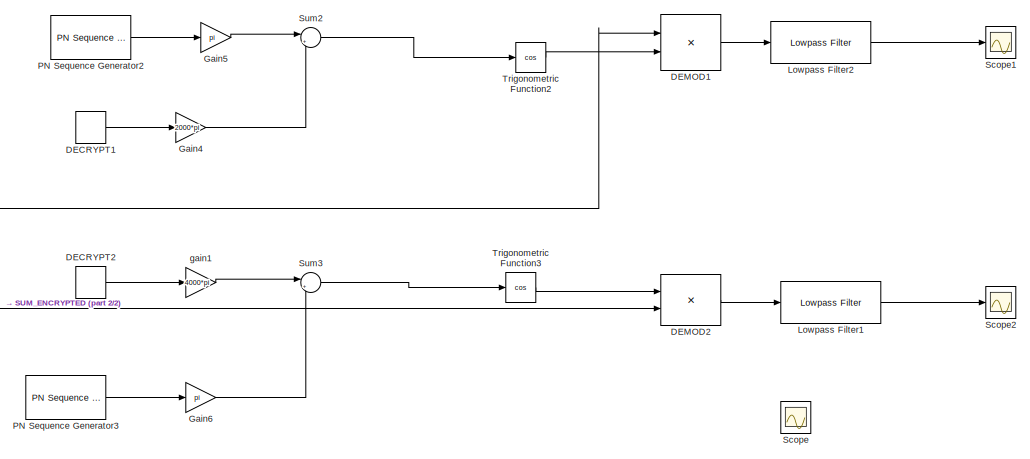
[diagram: root canvas - part 1/2, top right region]
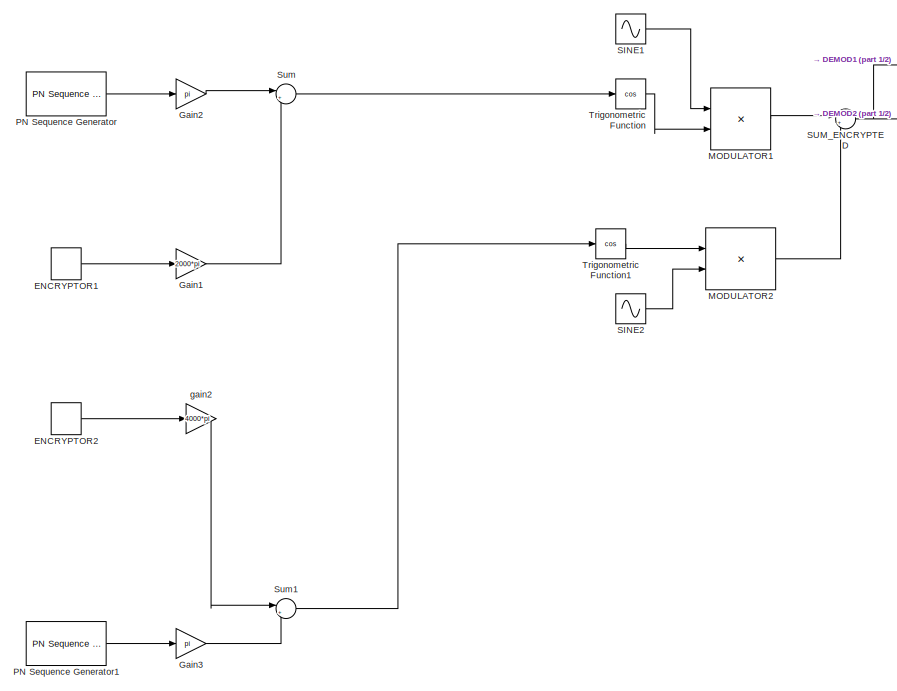
[diagram: root canvas - part 2/2, left side, full height]
MODEL slx_d03cf57683a1
KIND model
CONFIG AbsTol = auto
CONFIG EnableMultiTasking = off
CONFIG FixedStep = 0.0001
CONFIG MaxStep = auto
CONFIG MinStep = auto
CONFIG RelTol = 1e-3
CONFIG SampleTimeConstraint = Unconstrained
CONFIG SolverName = FixedStepAuto
CONFIG StartTime = 0.0
CONFIG StopTime = 10
BLOCK [DiscretePulseGenerator] DECRYPT1
  Period = 10
  PulseWidth = 5
  SampleTime = 0.0001
BLOCK [DiscretePulseGenerator] DECRYPT2
  Period = 10
  PulseWidth = 5
  SampleTime = 0.0001
BLOCK [Product] DEMOD1
BLOCK [Product] DEMOD2
BLOCK [DiscretePulseGenerator] ENCRYPTOR1
  Period = 10
  PulseWidth = 5
  SampleTime = 0.0001
BLOCK [DiscretePulseGenerator] ENCRYPTOR2
  Period = 5
  PulseWidth = 3
  SampleTime = 0.0001
BLOCK [Gain] Gain1
  Gain = 2000*pi
BLOCK [Gain] Gain2
  Gain = pi
BLOCK [Gain] Gain3
  Gain = pi
BLOCK [Gain] Gain4
  Gain = 2000*pi
BLOCK [Gain] Gain5
  Gain = pi
BLOCK [Gain] Gain6
  Gain = pi
BLOCK [Reference] Lowpass Filter1  REF=dspfdesign/Lowpass Filter
  SourceBlock = dspfdesign/Lowpass Filter
  SourceType = dsp.simulink.LowpassFilter
BLOCK [Reference] Lowpass Filter2  REF=dspfdesign/Lowpass Filter
  SourceBlock = dspfdesign/Lowpass Filter
  SourceType = dsp.simulink.LowpassFilter
BLOCK [Product] MODULATOR1
BLOCK [Product] MODULATOR2
BLOCK [Reference] PN Sequence Generator  REF=commseqgen3/PN Sequence
Generator
  SourceBlock = commseqgen3/PN Sequence\nGenerator
  SourceType = PN Sequence Generator
BLOCK [Reference] PN Sequence Generator1  REF=commseqgen3/PN Sequence
Generator
  SourceBlock = commseqgen3/PN Sequence\nGenerator
  SourceType = PN Sequence Generator
BLOCK [Reference] PN Sequence Generator2  REF=commseqgen3/PN Sequence
Generator
  SourceBlock = commseqgen3/PN Sequence\nGenerator
  SourceType = PN Sequence Generator
BLOCK [Reference] PN Sequence Generator3  REF=commseqgen3/PN Sequence
Generator
  SourceBlock = commseqgen3/PN Sequence\nGenerator
  SourceType = PN Sequence Generator
BLOCK [Sin] SINE1
  Frequency = 10
  SampleTime = 0.0001
  Samples = 1000
  SineType = Sample based
BLOCK [Sin] SINE2
  Frequency = 20
  SampleTime = 0.0001
  Samples = 500
  SineType = Sample based
BLOCK [Sum] SUM_ENCRYPTED
  Inputs = |++
BLOCK [Scope] Scope
  Floating = off
  NumInputPorts = 1
  ScopeSpecificationString = Simulink.scopes.TimeScopeBlockCfg('CurrentConfiguration', extmgr.ConfigurationSet(extmgr.Configuration('Core','General UI',true),extmgr.Configuration('Core','Source UI',true),extmgr.Configuration('Sources','WiredSimulink',true,'DataLoggingVariableName','ScopeData1'),extmgr.Configuration('Visuals','Time Domain',true,'SerializedDisplays',{struct('MinYLimReal','-23666487.9792','MaxYLimReal','23708767...<+1621ch>
BLOCK [Scope] Scope1
  Floating = off
  NumInputPorts = 1
  ScopeSpecificationString = Simulink.scopes.TimeScopeBlockCfg('CurrentConfiguration', extmgr.ConfigurationSet(extmgr.Configuration('Core','General UI',true),extmgr.Configuration('Core','Source UI',true),extmgr.Configuration('Sources','WiredSimulink',true,'DataLoggingVariableName','ScopeData2'),extmgr.Configuration('Visuals','Time Domain',true,'SerializedDisplays',{struct('MinYLimReal','-16490241630.18025','MaxYLimReal','1643...<+1612ch>
BLOCK [Scope] Scope2
  Floating = off
  NumInputPorts = 1
  ScopeSpecificationString = Simulink.scopes.TimeScopeBlockCfg('CurrentConfiguration', extmgr.ConfigurationSet(extmgr.Configuration('Core','General UI',true),extmgr.Configuration('Core','Source UI',true),extmgr.Configuration('Sources','WiredSimulink',true,'DataLoggingVariableName','ScopeData3'),extmgr.Configuration('Visuals','Time Domain',true,'SerializedDisplays',{struct('MinYLimReal','-0.69437','MaxYLimReal','1.99494','YLab...<+1509ch>
BLOCK [Sum] Sum
  Inputs = |++
BLOCK [Sum] Sum1
  Inputs = |++
BLOCK [Sum] Sum2
  Inputs = |++
BLOCK [Sum] Sum3
  Inputs = |++
BLOCK [Trigonometry] Trigonometric Function
  Operator = cos
BLOCK [Trigonometry] Trigonometric Function1
  Operator = cos
BLOCK [Trigonometry] Trigonometric Function2
  Operator = cos
BLOCK [Trigonometry] Trigonometric Function3
  Operator = cos
BLOCK [Gain] gain1
  Gain = 4000*pi
BLOCK [Gain] gain2
  Gain = 4000*pi
LINE DECRYPT1:1 -> Gain4:1
LINE DECRYPT2:1 -> gain1:1
LINE DEMOD1:1 -> Lowpass Filter2:1
LINE DEMOD2:1 -> Lowpass Filter1:1
LINE ENCRYPTOR1:1 -> Gain1:1
LINE ENCRYPTOR2:1 -> gain2:1
LINE Gain1:1 -> Sum:2
LINE Gain2:1 -> Sum:1
LINE Gain3:1 -> Sum1:2
LINE Gain4:1 -> Sum2:2
LINE Gain5:1 -> Sum2:1
LINE Gain6:1 -> Sum3:2
LINE Lowpass Filter1:1 -> Scope2:1
LINE Lowpass Filter2:1 -> Scope1:1
LINE MODULATOR1:1 -> SUM_ENCRYPTED:1
LINE MODULATOR2:1 -> SUM_ENCRYPTED:2
LINE PN Sequence Generator1:1 -> Gain3:1
LINE PN Sequence Generator2:1 -> Gain5:1
LINE PN Sequence Generator3:1 -> Gain6:1
LINE PN Sequence Generator:1 -> Gain2:1
LINE SINE1:1 -> MODULATOR1:1
LINE SINE2:1 -> MODULATOR2:2
NET SUM_ENCRYPTED:1 -> DEMOD1:1, DEMOD2:2
LINE Sum1:1 -> Trigonometric Function1:1
LINE Sum2:1 -> Trigonometric Function2:1
LINE Sum3:1 -> Trigonometric Function3:1
LINE Sum:1 -> Trigonometric Function:1
LINE Trigonometric Function1:1 -> MODULATOR2:1
LINE Trigonometric Function2:1 -> DEMOD1:2
LINE Trigonometric Function3:1 -> DEMOD2:1
LINE Trigonometric Function:1 -> MODULATOR1:2
LINE gain1:1 -> Sum3:1
LINE gain2:1 -> Sum1:1
note: NET lines group one-source signal fan-out (src -> all destinations, sorted); 1:1 wires keep LINE
